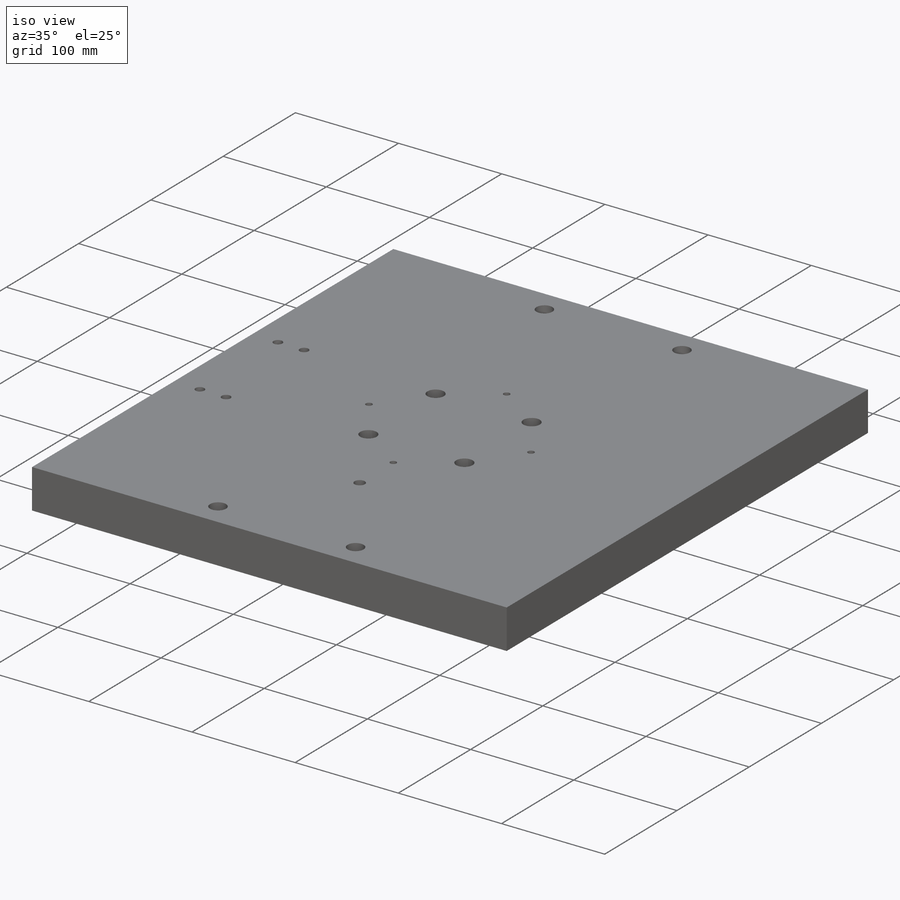
[diagram: iso view]
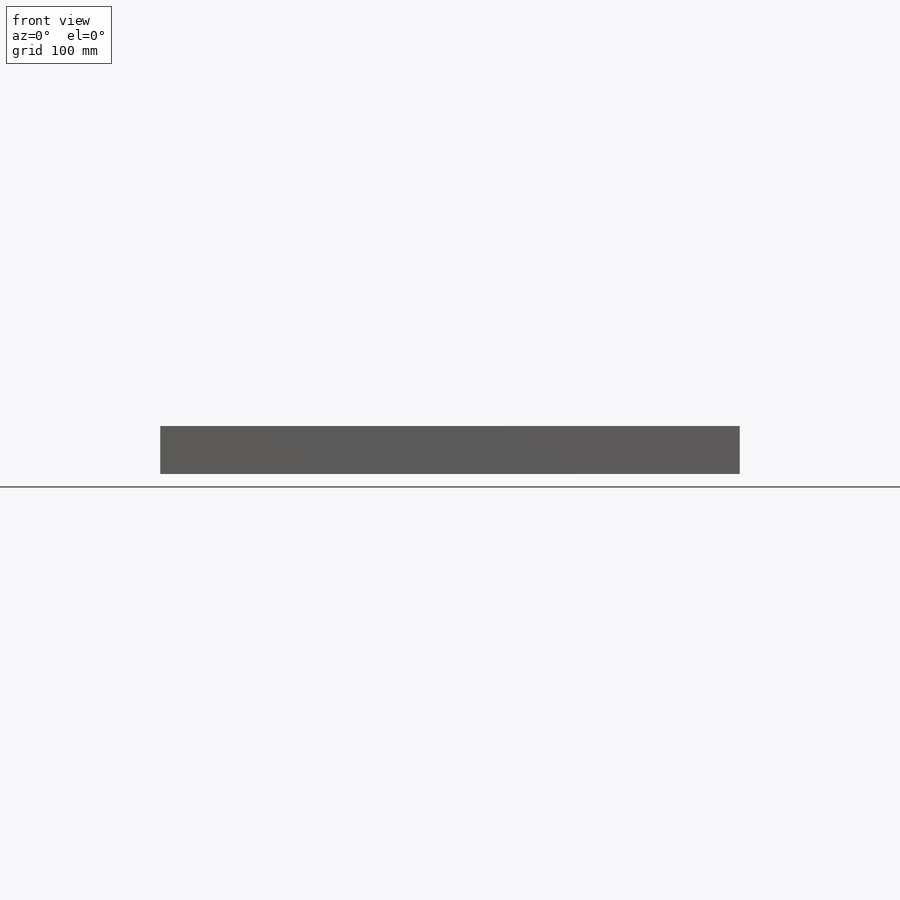
[diagram: front view]
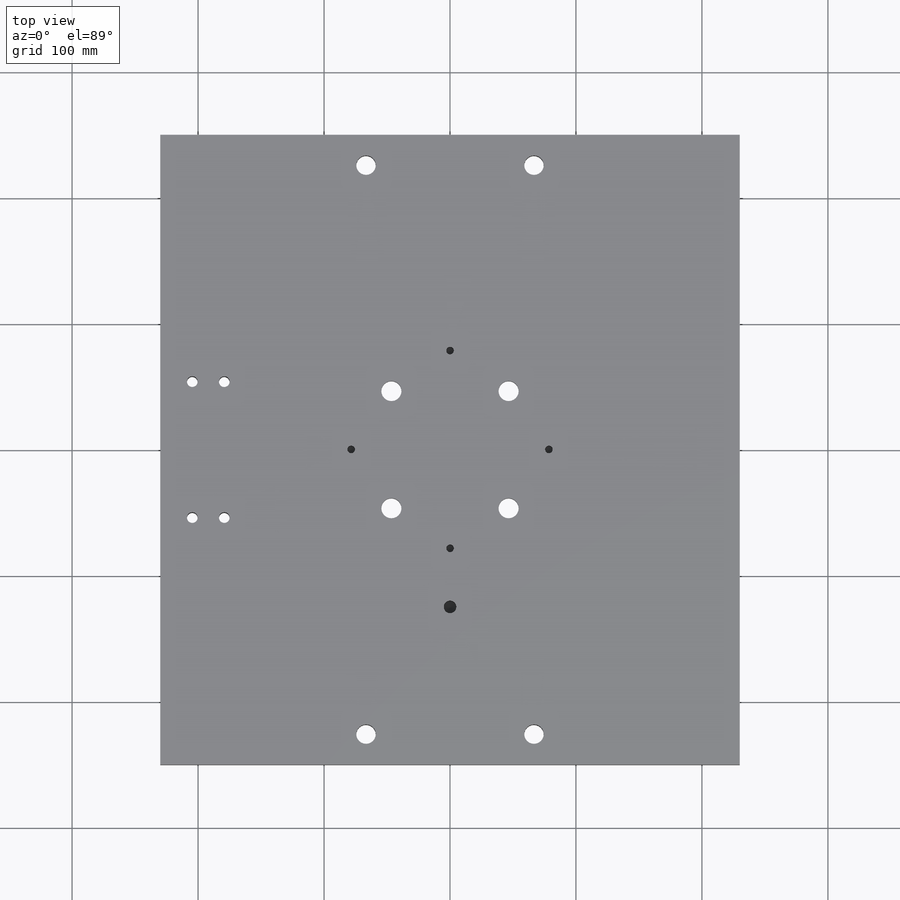
[diagram: top view]
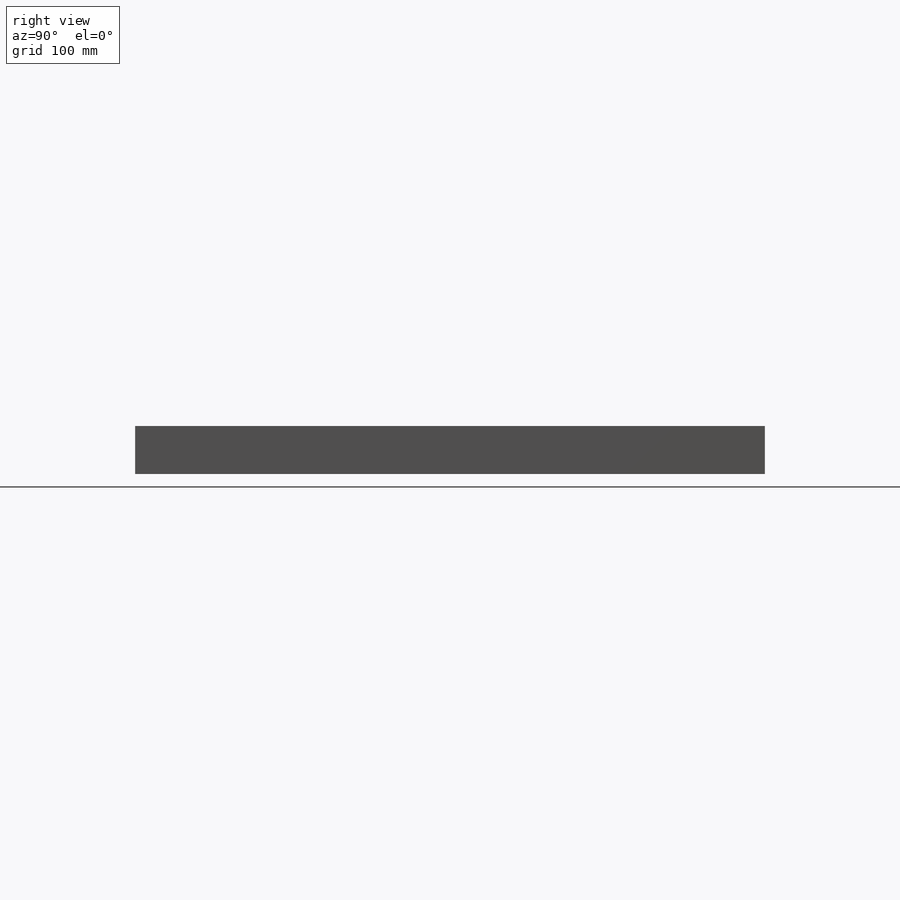
[diagram: right view]
SOLIDWORKS PART (.sldprt)
format: sldprt  version: not decoded by parser v0  size: 440,832 bytes
history: native  units: mm
features: sketch x18, hole x5, material x1, extrude x1, cut_extrude x1 (+12 scaffold rows collapsed)
feature tree (38):
  scaffold x12  (default folders/planes/origin — collapsed)
  material  "Material <not specified>"
  sketch  "Sketch1"  dims[c1.D1=~62.00585mm c1.D3=800.0mm c2.D1=500.0mm c2.D2=460.0mm c2.D3=0.0mm]
  extrude  "Boss-Extrude1"  Depth=38.1mm
  sketch  "Sketch3"  dims[c1.D1=15.0mm c1.D2=15.0mm c2.D1=15.0mm]
  sketch  "Sketch5"  dims[D1=131.572mm]
  hole  "Tap Drill for M5x0.8 Tap1"  Diameter=4.2mm Depth=20mm
  sketch  "Sketch9"
  sketch  "Sketch8"  dims[hole-wizard template sketch: 47 standard entries collapsed; hole parameters kept: c15.Hole Depth=20.0mm c15.D3=~14.816244mm c15.Drill Angle=118.0deg]
  sketch  "Sketch10"  dims[c1.D1=~49.673949mm c1.D3=156.972mm c2.D1=65.786mm c3.D1=67.5deg c3.D2=~226.460484mm c4.D2=22.5deg]
  hole  "3/4 (0.7500) Dowel Hole1"  Diameter=19.05mm Depth=38.1mm
  sketch  "Sketch12"
  sketch  "Sketch11"  dims[hole-wizard template sketch: 60 standard entries collapsed; hole parameters kept: c18.Thru Hole Depth=38.1mm]
  sketch  "Sketch13"  dims[D1=~90.029984mm]
  cut_extrude  "Cut-Extrude4"  Depth=15mm
  sketch  "Sketch14"  dims[c1.D1=36.0mm c1.D2=24.13mm c1.D3=24.13mm c2.D1=66.67mm c2.D4=66.67mm c2.D5=66.67mm c2.D6=66.67mm]
  hole  "M14 Clearance Hole1"  Diameter=15.5mm Depth=38.1mm
  sketch  "Sketch16"
  sketch  "Sketch15"  dims[hole-wizard template sketch: 59 standard entries collapsed; hole parameters kept: c18.Thru Hole Dia.=15.5mm c18.Thru Hole Depth=38.1mm]
  sketch  "Sketch18"  dims[c1.D1=137.5mm c1.D2=137.5mm c2.D2=45.0deg]
  sketch  "Sketch23"  dims[c1.D1=25.4mm c1.D2=25.4mm c1.D3=26.162mm c1.D4=25.4mm c1.D5=25.4mm c1.D6=25.4mm c1.D7=~61.253538mm c2.D6=26.162mm c2.D7=25.4mm]
  hole  "Tap Drill for M10x1.5 Tap1"  Diameter=8.5mm Depth=38.1mm
  sketch  "Sketch25"
  sketch  "Sketch26"  dims[hole-wizard template sketch: 59 standard entries collapsed; hole parameters kept: c18.Thru Hole Dia.=8.5mm c18.Thru Hole Depth=38.1mm]
  hole  "Ø6.0mm Dowel Hole1"  Diameter=6mm Depth=10mm
  sketch  "Sketch28"
  sketch  "Sketch27"  dims[hole-wizard template sketch: 50 standard entries collapsed; hole parameters above]
decode coverage: 20 of 25 modeling features carry decoded parameters
note: ~ marks probable driven/reference dimensions
summary: Diameter pulled from absorbed wizard sketch
note: suppression state not decoded; provenance and decode notes live in map.json
